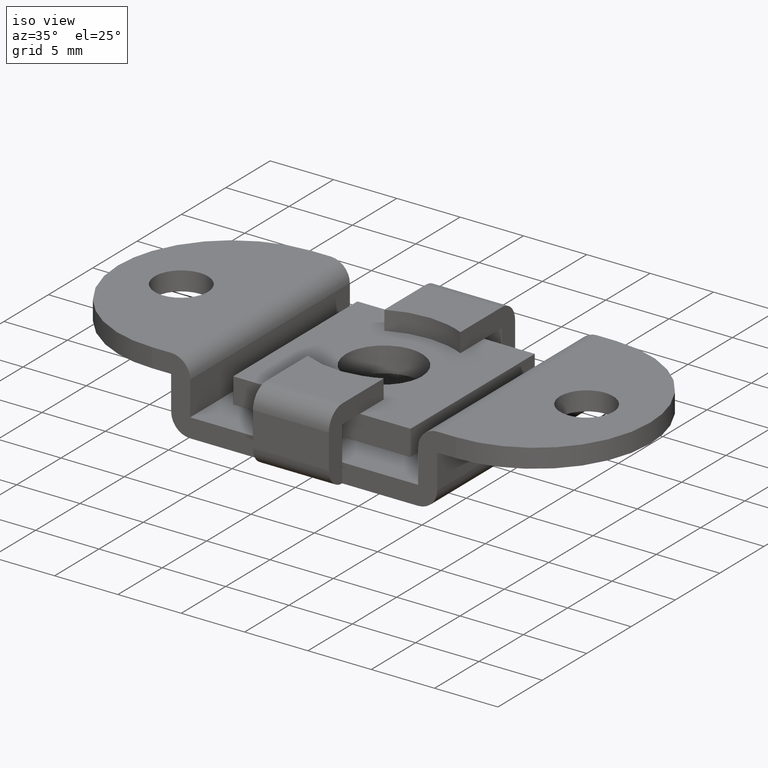
[diagram: clean part render]
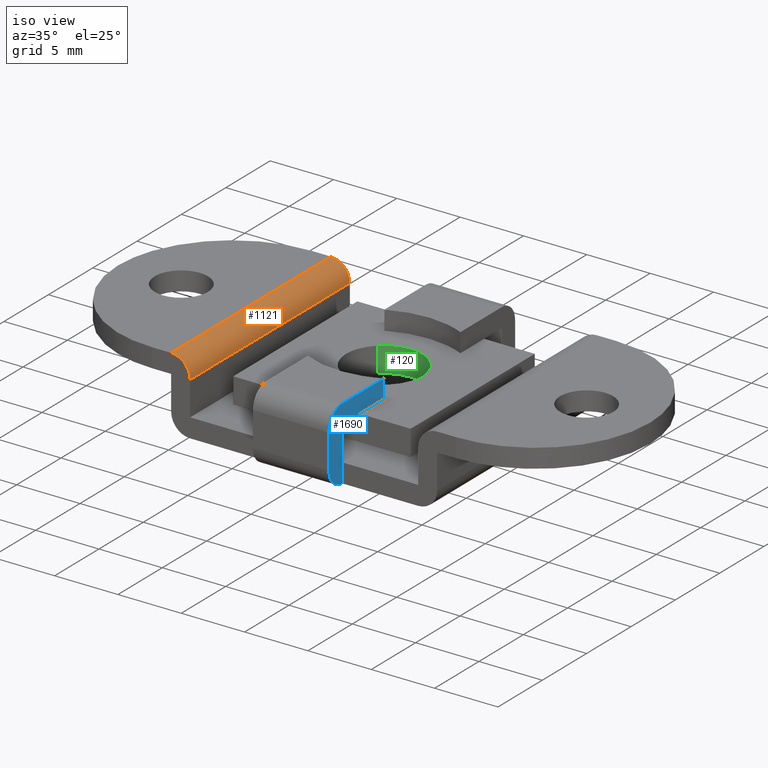
[diagram: same view with three faces highlighted in distinct colors, each labeled with its STEP entity id]
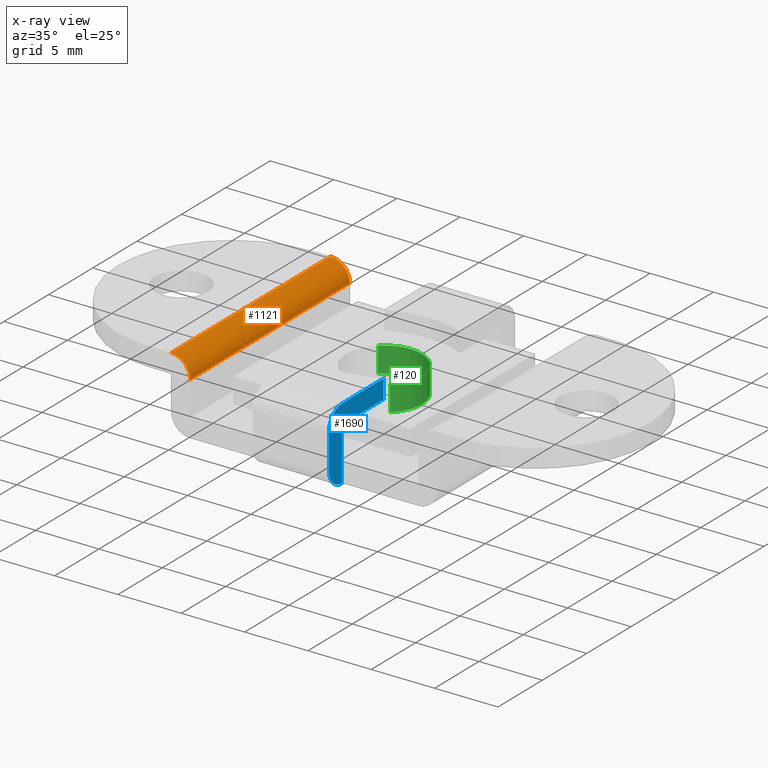
[diagram: x-ray of the same camera — body ghosted, the three highlighted faces saturated]
A machine part, iso view with three faces highlighted in distinct colors.
The next image is the same camera in x-ray (body ghosted, the three faces saturated) — at least one of them is partly hidden behind the body in this view.
Their STEP definitions:

[orange] entity #1121 — the highlighted face is a freeform B-spline surface patch.
#1061=CARTESIAN_POINT('',(-10.539265422461810,9.450000000000001,5.699485987463335));
#1062=CARTESIAN_POINT('',(-10.539265422461810,-9.461250000000000,5.699485987463335));
#1063=CARTESIAN_POINT('',(-8.902863617108825,9.450000000000001,5.742336676793983));
#1064=CARTESIAN_POINT('',(-8.902863617108825,-9.461250000000000,5.742336676793983));
#1065=CARTESIAN_POINT('',(-9.002797802367201,9.450000000000001,4.108427190697715));
#1066=CARTESIAN_POINT('',(-9.002797802367201,-9.461250000000000,4.108427190697715));
#1074=(BOUNDED_SURFACE()B_SPLINE_SURFACE(1,2,((#1061,#1063,#1065),(#1062,#1064,#1066)),.UNSPECIFIED.,.F.,.F.,.U.)B_SPLINE_SURFACE_WITH_KNOTS((2,2),(3,3),(0.0,18.911249999999999),(0.0,2.640063185351001),.UNSPECIFIED.)GEOMETRIC_REPRESENTATION_ITEM()RATIONAL_B_SPLINE_SURFACE(((1.0,0.675590207615660,1.0),(1.0,0.675590207615660,1.0)))REPRESENTATION_ITEM('')SURFACE());
#1075=CARTESIAN_POINT('',(-10.500000000000000,9.0,5.700000000000000));
#1076=VERTEX_POINT('',#1075);
#1077=CARTESIAN_POINT('',(-9.0,9.0,4.200000000000000));
#1078=VERTEX_POINT('',#1077);
#1079=CARTESIAN_POINT('',(-10.500000000000000,9.0,5.700000000000000));
#1080=CARTESIAN_POINT('',(-10.389552792277780,9.000000000000002,5.700020192251236));
#1081=CARTESIAN_POINT('',(-10.180940462025770,8.999999999999988,5.676853394539768));
#1082=CARTESIAN_POINT('',(-9.899927707414610,9.000000000000030,5.584024062447181));
#1083=CARTESIAN_POINT('',(-9.673322516359113,8.999999999999957,5.459289235149973));
#1084=CARTESIAN_POINT('',(-9.464755083876703,9.000000000000053,5.296529643681336));
#1085=CARTESIAN_POINT('',(-9.279576353710979,8.999999999999991,5.089692356114492));
#1086=CARTESIAN_POINT('',(-9.118132099505454,9.000000000000009,4.812696311184907));
#1087=CARTESIAN_POINT('',(-9.021142245683929,9.0,4.512933081598130));
#1088=CARTESIAN_POINT('',(-8.999991551064070,8.999999999999996,4.298173476129058));
#1089=CARTESIAN_POINT('',(-9.0,9.0,4.200000000000000));
#1090=B_SPLINE_CURVE_WITH_KNOTS('',3,(#1079,#1080,#1081,#1082,#1083,#1084,#1085,#1086,#1087,#1088,#1089),.UNSPECIFIED.,.F.,.U.,(4,1,1,1,1,1,1,1,4),(0.000000052719273,0.331338341886281,0.625868551229856,0.883582025426378,1.104485702340122,1.417397069881645,1.711931886898822,2.061685967823337,2.356209274317297),.UNSPECIFIED.);
#1091=EDGE_CURVE('',#1076,#1078,#1090,.T.);
#1092=ORIENTED_EDGE('',*,*,#1091,.F.);
#1093=CARTESIAN_POINT('',(-10.500000000000000,-9.0,5.700000000000000));
#1094=VERTEX_POINT('',#1093);
#1095=CARTESIAN_POINT('',(-10.500000000000000,-9.0,5.700000000000000));
#1096=CARTESIAN_POINT('',(-10.500000000000000,9.0,5.700000000000000));
#1097=QUASI_UNIFORM_CURVE('',1,(#1095,#1096),.UNSPECIFIED.,.F.,.U.);
#1098=EDGE_CURVE('',#1094,#1076,#1097,.T.);
#1099=ORIENTED_EDGE('',*,*,#1098,.F.);
#1100=CARTESIAN_POINT('',(-9.0,-9.0,4.200000000000000));
#1101=VERTEX_POINT('',#1100);
#1102=CARTESIAN_POINT('',(-9.0,-9.0,4.200000000000000));
#1103=CARTESIAN_POINT('',(-8.999928058886743,-8.999999999999998,4.353404095843294));
#1104=CARTESIAN_POINT('',(-9.041780730467531,-9.000000000000023,4.623347350537309));
#1105=CARTESIAN_POINT('',(-9.194092587132648,-8.999999999999984,4.961276353387037));
#1106=CARTESIAN_POINT('',(-9.385080949093156,-9.000000000000014,5.218786905627789));
#1107=CARTESIAN_POINT('',(-9.637877401016819,-9.000000000000057,5.445133894437854));
#1108=CARTESIAN_POINT('',(-10.009199310242270,-8.999999999999844,5.643637845084115));
#1109=CARTESIAN_POINT('',(-10.322041653935941,-9.000000000000174,5.700143104309575));
#1110=CARTESIAN_POINT('',(-10.500000000000000,-9.0,5.700000000000000));
#1111=B_SPLINE_CURVE_WITH_KNOTS('',3,(#1102,#1103,#1104,#1105,#1106,#1107,#1108,#1109,#1110),.UNSPECIFIED.,.F.,.U.,(4,1,1,1,1,1,4),(0.000000052719707,0.460196441646502,0.809953102174631,1.104485702340512,1.417397069882107,1.822382049918193,2.356209274317278),.UNSPECIFIED.);
#1112=EDGE_CURVE('',#1101,#1094,#1111,.T.);
#1113=ORIENTED_EDGE('',*,*,#1112,.F.);
#1114=CARTESIAN_POINT('',(-9.0,9.0,4.200000000000000));
#1115=CARTESIAN_POINT('',(-9.0,-9.0,4.200000000000000));
#1116=QUASI_UNIFORM_CURVE('',1,(#1114,#1115),.UNSPECIFIED.,.F.,.U.);
#1117=EDGE_CURVE('',#1078,#1101,#1116,.T.);
#1118=ORIENTED_EDGE('',*,*,#1117,.F.);
#1119=EDGE_LOOP('',(#1092,#1099,#1113,#1118));
#1120=FACE_OUTER_BOUND('',#1119,.T.);
#1121=ADVANCED_FACE('',(#1120),#1074,.T.);

[blue] entity #1690 — the highlighted face is a freeform B-spline surface patch.
#1032=CARTESIAN_POINT('',(3.0,-9.0,5.700000000000000));
#1033=VERTEX_POINT('',#1032);
#1039=CARTESIAN_POINT('',(3.000007337778445,-4.324551839717620,5.700000000000000));
#1040=VERTEX_POINT('',#1039);
#1041=CARTESIAN_POINT('',(3.000007337778445,-4.324551839717620,5.700000000000000));
#1042=CARTESIAN_POINT('',(3.0,-9.0,5.700000000000000));
#1043=QUASI_UNIFORM_CURVE('',1,(#1041,#1042),.UNSPECIFIED.,.F.,.U.);
#1044=EDGE_CURVE('',#1040,#1033,#1043,.T.);
#1258=CARTESIAN_POINT('',(3.0,-10.500000000000000,1.500000000000000));
#1259=VERTEX_POINT('',#1258);
#1260=CARTESIAN_POINT('',(3.0,-9.0,0.0));
#1261=VERTEX_POINT('',#1260);
#1262=CARTESIAN_POINT('',(3.0,-10.500000000000000,1.500000000000000));
#1263=CARTESIAN_POINT('',(2.999999999999993,-10.500039539343421,1.365008989180822));
#1264=CARTESIAN_POINT('',(3.000000000000005,-10.463326420922190,1.095039609743965));
#1265=CARTESIAN_POINT('',(3.000000000000013,-10.316952563098470,0.753568999106151));
#1266=CARTESIAN_POINT('',(2.999999999999994,-10.129600175061579,0.501026571324188));
#1267=CARTESIAN_POINT('',(3.000000000000012,-9.909893927339127,0.294383214040883));
#1268=CARTESIAN_POINT('',(2.999999999999993,-9.636218012772726,0.125716919256294));
#1269=CARTESIAN_POINT('',(3.000000000000002,-9.312930871420969,0.021146329534929));
#1270=CARTESIAN_POINT('',(3.0,-9.098173387629661,-0.000007272195549));
#1271=CARTESIAN_POINT('',(3.0,-9.0,0.0));
#1272=B_SPLINE_CURVE_WITH_KNOTS('',3,(#1262,#1263,#1264,#1265,#1266,#1267,#1268,#1269,#1270,#1271),.UNSPECIFIED.,.F.,.U.,(4,1,1,1,1,1,1,4),(0.000000052721459,0.404968350575049,0.809953102175441,1.104485702340933,1.343769477088169,1.711931886899068,2.061685967823382,2.356209274317297),.UNSPECIFIED.);
#1273=EDGE_CURVE('',#1259,#1261,#1272,.T.);
#1334=CARTESIAN_POINT('',(3.0,-10.500000000000000,4.200000000000000));
#1335=VERTEX_POINT('',#1334);
#1341=CARTESIAN_POINT('',(3.0,-9.0,5.700000000000000));
#1342=CARTESIAN_POINT('',(2.999999999999991,-9.184104940360657,5.700152888018846));
#1343=CARTESIAN_POINT('',(3.000000000000012,-9.453963543749016,5.649666276971002));
#1344=CARTESIAN_POINT('',(2.999999999999973,-9.797101773498135,5.482128348124002));
#1345=CARTESIAN_POINT('',(3.000000000000092,-10.042764881204590,5.295243593609738));
#1346=CARTESIAN_POINT('',(2.999999999999929,-10.261366529603320,5.035438172210668));
#1347=CARTESIAN_POINT('',(3.000000000000037,-10.446946161120330,4.672380143080646));
#1348=CARTESIAN_POINT('',(2.999999999999994,-10.500141319773659,4.377963215052269));
#1349=CARTESIAN_POINT('',(3.0,-10.500000000000000,4.200000000000000));
#1350=B_SPLINE_CURVE_WITH_KNOTS('',3,(#1341,#1342,#1343,#1344,#1345,#1346,#1347,#1348,#1349),.UNSPECIFIED.,.F.,.U.,(4,1,1,1,1,1,4),(0.000000052720490,0.552235908878129,0.809953102174936,1.141297109189043,1.472627968994573,1.822382049918041,2.356209274317296),.UNSPECIFIED.);
#1351=EDGE_CURVE('',#1033,#1335,#1350,.T.);
#1554=CARTESIAN_POINT('',(3.0,-9.0,4.200000000000000));
#1555=VERTEX_POINT('',#1554);
#1568=CARTESIAN_POINT('',(3.000007337778445,-4.324551839717620,4.200000000000000));
#1569=VERTEX_POINT('',#1568);
#1582=CARTESIAN_POINT('',(3.000007337778445,-4.324551839717620,4.200000000000000));
#1583=CARTESIAN_POINT('',(3.0,-9.0,4.200000000000000));
#1584=QUASI_UNIFORM_CURVE('',1,(#1582,#1583),.UNSPECIFIED.,.F.,.U.);
#1585=EDGE_CURVE('',#1569,#1555,#1584,.T.);
#1605=CARTESIAN_POINT('',(3.000007337778445,-4.324551839717620,4.200000000000000));
#1606=CARTESIAN_POINT('',(3.000007337778445,-4.324551839717620,5.700000000000000));
#1607=QUASI_UNIFORM_CURVE('',1,(#1605,#1606),.UNSPECIFIED.,.F.,.U.);
#1608=EDGE_CURVE('',#1569,#1040,#1607,.T.);
#1624=CARTESIAN_POINT('',(3.0,-10.500000000000000,4.200000000000000));
#1625=CARTESIAN_POINT('',(3.0,-10.500000000000000,1.500000000000000));
#1626=QUASI_UNIFORM_CURVE('',1,(#1624,#1625),.UNSPECIFIED.,.F.,.U.);
#1627=EDGE_CURVE('',#1335,#1259,#1626,.T.);
#1665=CARTESIAN_POINT('',(3.0,-10.808463623636889,-0.284714988952293));
#1666=CARTESIAN_POINT('',(3.0,-10.808463623636889,5.984715141838208));
#1667=CARTESIAN_POINT('',(3.0,-4.016088050442304,-0.284714988952293));
#1668=CARTESIAN_POINT('',(3.0,-4.016088050442304,5.984715141838208));
#1669=B_SPLINE_SURFACE_WITH_KNOTS('',1,1,((#1665,#1667),(#1666,#1668)),.UNSPECIFIED.,.F.,.F.,.U.,(2,2),(2,2),(0.0,6.269430130790501),(0.0,6.792375573194585),.UNSPECIFIED.);
#1670=ORIENTED_EDGE('',*,*,#1044,.T.);
#1671=ORIENTED_EDGE('',*,*,#1351,.T.);
#1672=ORIENTED_EDGE('',*,*,#1627,.T.);
#1673=ORIENTED_EDGE('',*,*,#1273,.T.);
#1674=CARTESIAN_POINT('',(3.0,-9.0,1.499999999999900));
#1675=VERTEX_POINT('',#1674);
#1676=CARTESIAN_POINT('',(3.0,-9.0,0.0));
#1677=CARTESIAN_POINT('',(3.0,-9.0,1.499999999999900));
#1678=QUASI_UNIFORM_CURVE('',1,(#1676,#1677),.UNSPECIFIED.,.F.,.U.);
#1679=EDGE_CURVE('',#1261,#1675,#1678,.T.);
#1680=ORIENTED_EDGE('',*,*,#1679,.T.);
#1681=CARTESIAN_POINT('',(3.0,-9.0,4.200000000000000));
#1682=CARTESIAN_POINT('',(3.0,-9.0,1.499999999999900));
#1683=QUASI_UNIFORM_CURVE('',1,(#1681,#1682),.UNSPECIFIED.,.F.,.U.);
#1684=EDGE_CURVE('',#1555,#1675,#1683,.T.);
#1685=ORIENTED_EDGE('',*,*,#1684,.F.);
#1686=ORIENTED_EDGE('',*,*,#1585,.F.);
#1687=ORIENTED_EDGE('',*,*,#1608,.T.);
#1688=EDGE_LOOP('',(#1670,#1671,#1672,#1673,#1680,#1685,#1686,#1687));
#1689=FACE_OUTER_BOUND('',#1688,.T.);
#1690=ADVANCED_FACE('',(#1689),#1669,.F.);

[green] entity #120 — the highlighted face is a freeform B-spline surface patch.
#5=CARTESIAN_POINT('',(-2.026770622846980,2.211832010430372,4.249999999999867));
#6=CARTESIAN_POINT('',(0.185061387583391,4.238602633277352,4.249999999999867));
#7=CARTESIAN_POINT('',(2.211832010430372,2.026770622846980,4.249999999999867));
#8=CARTESIAN_POINT('',(4.238602633277352,-0.185061387583391,4.249999999999867));
#9=CARTESIAN_POINT('',(2.026770622846980,-2.211832010430372,4.249999999999867));
#10=CARTESIAN_POINT('',(-2.026770622846980,2.211832010430372,2.148750000000004));
#11=CARTESIAN_POINT('',(0.185061387583391,4.238602633277352,2.148750000000004));
#12=CARTESIAN_POINT('',(2.211832010430372,2.026770622846980,2.148750000000004));
#13=CARTESIAN_POINT('',(4.238602633277352,-0.185061387583391,2.148750000000004));
#14=CARTESIAN_POINT('',(2.026770622846980,-2.211832010430372,2.148750000000004));
#22=(BOUNDED_SURFACE()B_SPLINE_SURFACE(2,1,((#5,#10),(#6,#11),(#7,#12),(#8,#13),(#9,#14)),.UNSPECIFIED.,.F.,.F.,.U.)B_SPLINE_SURFACE_WITH_KNOTS((3,2,3),(2,2),(0.0,4.970562748477139,9.941125496954278),(0.0,2.101249999999863),.UNSPECIFIED.)GEOMETRIC_REPRESENTATION_ITEM()RATIONAL_B_SPLINE_SURFACE(((1.0,1.0),(0.707106781186548,0.707106781186548),(1.0,1.0),(0.707106781186548,0.707106781186548),(1.0,1.0)))REPRESENTATION_ITEM('')SURFACE());
#23=CARTESIAN_POINT('',(-0.000000416446229,2.999999999999971,2.200000000000000));
#24=VERTEX_POINT('',#23);
#25=CARTESIAN_POINT('',(-2.026770673496882,2.211832104691778,2.199999999998505));
#26=VERTEX_POINT('',#25);
#27=CARTESIAN_POINT('',(-0.000000416446229,2.999999999999971,2.200000000000000));
#28=CARTESIAN_POINT('',(-0.231808004722438,3.000053745447355,2.199999999999831));
#29=CARTESIAN_POINT('',(-0.567894950170939,2.960838457717086,2.199999999999585));
#30=CARTESIAN_POINT('',(-1.091536627227775,2.808031019545747,2.199999999999185));
#31=CARTESIAN_POINT('',(-1.555341577934247,2.589437255828580,2.199999999998878));
#32=CARTESIAN_POINT('',(-1.881518573132468,2.344961408342103,2.199999999998605));
#33=CARTESIAN_POINT('',(-2.026770673496882,2.211832104691778,2.199999999998505));
#34=B_SPLINE_CURVE_WITH_KNOTS('',3,(#27,#28,#29,#30,#31,#32,#33),.UNSPECIFIED.,.F.,.U.,(4,1,1,1,4),(9.159042E-009,0.695408462708646,1.008347260480749,1.634209409159314,2.225306846483946),.UNSPECIFIED.);
#35=EDGE_CURVE('',#24,#26,#34,.T.);
#36=ORIENTED_EDGE('',*,*,#35,.F.);
#37=CARTESIAN_POINT('',(3.0,0.0,2.200000000000000));
#38=VERTEX_POINT('',#37);
#39=CARTESIAN_POINT('',(3.0,0.0,2.200000000000000));
#40=CARTESIAN_POINT('',(3.000052158853372,0.233170579982933,2.200000000000006));
#41=CARTESIAN_POINT('',(2.962610218432781,0.552211795243793,2.199999999999987));
#42=CARTESIAN_POINT('',(2.818622979182426,1.060389759498734,2.200000000000007));
#43=CARTESIAN_POINT('',(2.620922720841082,1.499108976646324,2.199999999999990));
#44=CARTESIAN_POINT('',(2.241578116529980,2.030850282358276,2.199999999999996));
#45=CARTESIAN_POINT('',(1.762183580338709,2.460024272773710,2.200000000000004));
#46=CARTESIAN_POINT('',(1.211195246047357,2.763216443226863,2.200000000000004));
#47=CARTESIAN_POINT('',(0.638114500497475,2.952540343500542,2.199999999999992));
#48=CARTESIAN_POINT('',(0.233166936375060,3.000049267595030,2.199999999999998));
#49=CARTESIAN_POINT('',(-0.000000416446229,2.999999999999971,2.200000000000000));
#50=B_SPLINE_CURVE_WITH_KNOTS('',3,(#39,#40,#41,#42,#43,#44,#45,#46,#47,#48,#49),.UNSPECIFIED.,.F.,.U.,(4,1,1,1,1,1,1,1,4),(0.000000033856314,0.699497773477367,0.957207019893092,1.583080279433483,2.135320060540488,2.908443203026440,3.497497773849499,4.012924576036063,4.712418783343729),.UNSPECIFIED.);
#51=EDGE_CURVE('',#38,#24,#50,.T.);
#52=ORIENTED_EDGE('',*,*,#51,.F.);
#53=CARTESIAN_POINT('',(2.026770673496891,-2.211832104691788,2.199999999998505));
#54=VERTEX_POINT('',#53);
#55=CARTESIAN_POINT('',(2.026770673496891,-2.211832104691788,2.199999999998505));
#56=CARTESIAN_POINT('',(2.189154825617239,-2.063084365364944,2.199999999998608));
#57=CARTESIAN_POINT('',(2.438008315319362,-1.778643069444493,2.199999999998797));
#58=CARTESIAN_POINT('',(2.694638127463473,-1.341714947610047,2.199999999999094));
#59=CARTESIAN_POINT('',(2.871714717387896,-0.909251131210339,2.199999999999384));
#60=CARTESIAN_POINT('',(2.976895906402783,-0.466331576792851,2.199999999999695));
#61=CARTESIAN_POINT('',(3.000005241792061,-0.142488543898814,2.199999999999888));
#62=CARTESIAN_POINT('',(3.0,0.0,2.200000000000000));
#63=B_SPLINE_CURVE_WITH_KNOTS('',3,(#55,#56,#57,#58,#59,#60,#61,#62),.UNSPECIFIED.,.F.,.U.,(4,1,1,1,1,4),(9.363803E-009,0.660639622656906,1.126979847414933,1.515582155450733,2.059641657307937,2.487111640855479),.UNSPECIFIED.);
#64=EDGE_CURVE('',#54,#38,#63,.T.);
#65=ORIENTED_EDGE('',*,*,#64,.F.);
#66=CARTESIAN_POINT('',(2.026770673738997,-2.211832104469940,4.199999999999870));
#67=VERTEX_POINT('',#66);
#68=CARTESIAN_POINT('',(2.026770673738997,-2.211832104469940,4.199999999999870));
#69=CARTESIAN_POINT('',(2.026770673496891,-2.211832104691788,2.199999999998505));
#70=QUASI_UNIFORM_CURVE('',1,(#68,#69),.UNSPECIFIED.,.F.,.U.);
#71=EDGE_CURVE('',#67,#54,#70,.T.);
#72=ORIENTED_EDGE('',*,*,#71,.F.);
#73=CARTESIAN_POINT('',(3.0,0.0,4.199999999999870));
#74=VERTEX_POINT('',#73);
#75=CARTESIAN_POINT('',(2.026770673738997,-2.211832104469940,4.199999999999870));
#76=CARTESIAN_POINT('',(2.246548624182865,-2.010645768216164,4.199999999999865));
#77=CARTESIAN_POINT('',(2.518152812161263,-1.674451300544950,4.199999999999877));
#78=CARTESIAN_POINT('',(2.780758964578015,-1.152662624657844,4.199999999999864));
#79=CARTESIAN_POINT('',(2.950293295594806,-0.647655790733557,4.199999999999887));
#80=CARTESIAN_POINT('',(3.000063753833211,-0.246125411382695,4.199999999999846));
#81=CARTESIAN_POINT('',(3.0,0.0,4.199999999999870));
#82=B_SPLINE_CURVE_WITH_KNOTS('',3,(#75,#76,#77,#78,#79,#80,#81),.UNSPECIFIED.,.F.,.U.,(4,1,1,1,4),(9.363800E-009,0.893809639567540,1.282412500389488,1.748750195845290,2.487111640527097),.UNSPECIFIED.);
#83=EDGE_CURVE('',#67,#74,#82,.T.);
#84=ORIENTED_EDGE('',*,*,#83,.T.);
#85=CARTESIAN_POINT('',(-0.000000416446229,2.999999999999971,4.199999999999870));
#86=VERTEX_POINT('',#85);
#87=CARTESIAN_POINT('',(3.0,0.0,4.199999999999870));
#88=CARTESIAN_POINT('',(3.000052161679656,0.233170577393643,4.199999999999885));
#89=CARTESIAN_POINT('',(2.962610221252406,0.552211790945944,4.199999999999847));
#90=CARTESIAN_POINT('',(2.818622930664131,1.060389815663407,4.199999999999884));
#91=CARTESIAN_POINT('',(2.620922839001387,1.499108840692765,4.199999999999854));
#92=CARTESIAN_POINT('',(2.241578056485838,2.030850346581844,4.199999999999864));
#93=CARTESIAN_POINT('',(1.762183616229968,2.460024253946070,4.199999999999879));
#94=CARTESIAN_POINT('',(1.211195198964196,2.763216449865619,4.199999999999872));
#95=CARTESIAN_POINT('',(0.638114643568960,2.952540357977808,4.199999999999858));
#96=CARTESIAN_POINT('',(0.233166685145393,3.000049320351720,4.199999999999891));
#97=CARTESIAN_POINT('',(-0.000000416446229,2.999999999999971,4.199999999999870));
#98=B_SPLINE_CURVE_WITH_KNOTS('',3,(#87,#88,#89,#90,#91,#92,#93,#94,#95,#96,#97),.UNSPECIFIED.,.F.,.U.,(4,1,1,1,1,1,1,1,4),(0.000000033856314,0.699497773477367,0.957207019893092,1.583080279433483,2.135320060540488,2.908443203026440,3.497497773849499,4.012924576036063,4.712418783343729),.UNSPECIFIED.);
#99=EDGE_CURVE('',#74,#86,#98,.T.);
#100=ORIENTED_EDGE('',*,*,#99,.T.);
#101=CARTESIAN_POINT('',(-2.026770673738987,2.211832104469929,4.199999999999870));
#102=VERTEX_POINT('',#101);
#103=CARTESIAN_POINT('',(-0.000000416446229,2.999999999999971,4.199999999999870));
#104=CARTESIAN_POINT('',(-0.231805332302560,3.000050320863364,4.199999999999865));
#105=CARTESIAN_POINT('',(-0.649027769406933,2.951393263278275,4.199999999999871));
#106=CARTESIAN_POINT('',(-1.167546804372048,2.776947983417856,4.199999999999871));
#107=CARTESIAN_POINT('',(-1.620564620239227,2.540518238409537,4.199999999999871));
#108=CARTESIAN_POINT('',(-1.881521462731787,2.344967288705484,4.199999999999870));
#109=CARTESIAN_POINT('',(-2.026770673738987,2.211832104469929,4.199999999999870));
#110=B_SPLINE_CURVE_WITH_KNOTS('',3,(#103,#104,#105,#106,#107,#108,#109),.UNSPECIFIED.,.F.,.U.,(4,1,1,1,4),(9.158697E-009,0.695408462811012,1.251734827025207,1.634209409400389,2.225306846812331),.UNSPECIFIED.);
#111=EDGE_CURVE('',#86,#102,#110,.T.);
#112=ORIENTED_EDGE('',*,*,#111,.T.);
#113=CARTESIAN_POINT('',(-2.026770673738987,2.211832104469929,4.199999999999870));
#114=CARTESIAN_POINT('',(-2.026770673496882,2.211832104691778,2.199999999998505));
#115=QUASI_UNIFORM_CURVE('',1,(#113,#114),.UNSPECIFIED.,.F.,.U.);
#116=EDGE_CURVE('',#102,#26,#115,.T.);
#117=ORIENTED_EDGE('',*,*,#116,.T.);
#118=EDGE_LOOP('',(#36,#52,#65,#72,#84,#100,#112,#117));
#119=FACE_OUTER_BOUND('',#118,.T.);
#120=ADVANCED_FACE('',(#119),#22,.F.);